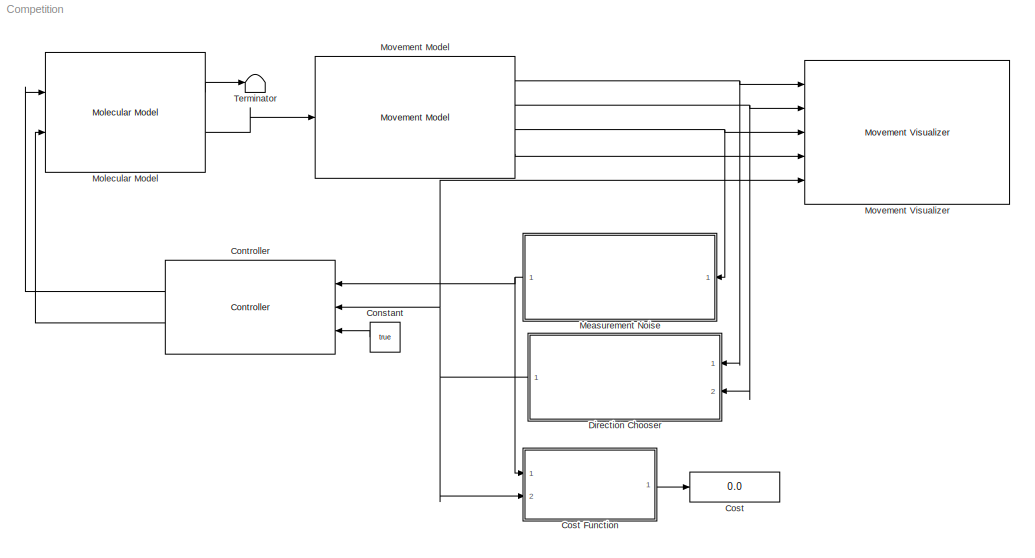
MODEL Competition
KIND model
BLOCK [Constant] Constant
  SID = 1
  Value = true
BLOCK [Reference] Controller  REF=LemmingToolbox/Controller
  Ports = [3, 2]
  SID = 2
  SourceBlock = LemmingToolbox/Controller
  controller = @controllerHysteresis
  sampleTimes = [0.3, 0]
BLOCK [Display] Cost
  Decimation = 1
  Ports = [1]
  SID = 3
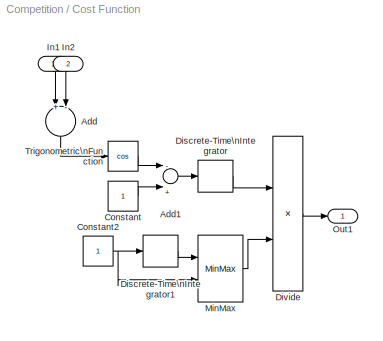
BLOCK [SubSystem] Cost Function
  Ports = [2, 1]
  RequestExecContextInheritance = off
  SID = 4
BLOCK [Sum] Cost Function/Add
  InputSameDT = off
  Inputs = +-
  OutDataTypeStr = Inherit: Inherit via internal rule
  Ports = [2, 1]
  SID = 7
  SaturateOnIntegerOverflow = off
BLOCK [Sum] Cost Function/Add1
  InputSameDT = off
  Inputs = -|+
  OutDataTypeStr = Inherit: Inherit via internal rule
  Ports = [2, 1]
  SID = 8
  SaturateOnIntegerOverflow = off
BLOCK [Constant] Cost Function/Constant
  SID = 9
BLOCK [Constant] Cost Function/Constant2
  SID = 10
  SampleTime = [0.3,0]
BLOCK [DiscreteIntegrator] Cost Function/Discrete-Time\nIntegrator
  ICPrevOutput = DiscIntNeverNeededParam
  ICPrevScaledInput = DiscIntNeverNeededParam
  Ports = [1, 1]
  SID = 11
  SampleTime = 0.3
BLOCK [DiscreteIntegrator] Cost Function/Discrete-Time\nIntegrator1
  ICPrevOutput = DiscIntNeverNeededParam
  ICPrevScaledInput = DiscIntNeverNeededParam
  Ports = [1, 1]
  SID = 12
  SampleTime = -1
BLOCK [Product] Cost Function/Divide
  InputSameDT = off
  Inputs = */
  OutDataTypeStr = Inherit: Inherit via internal rule
  Ports = [2, 1]
  RndMeth = Floor
  SID = 13
  SaturateOnIntegerOverflow = off
BLOCK [Inport] Cost Function/In1
  IconDisplay = Port number
  SID = 5
BLOCK [Inport] Cost Function/In2
  IconDisplay = Port number
  Port = 2
  SID = 6
BLOCK [MinMax] Cost Function/MinMax
  Function = max
  InputSameDT = off
  Inputs = 2
  Ports = [2, 1]
  SID = 14
  SaturateOnIntegerOverflow = off
BLOCK [Outport] Cost Function/Out1
  IconDisplay = Port number
  SID = 16
BLOCK [Trigonometry] Cost Function/Trigonometric\nFunction
  Operator = cos
  Ports = [1, 1]
  SID = 15
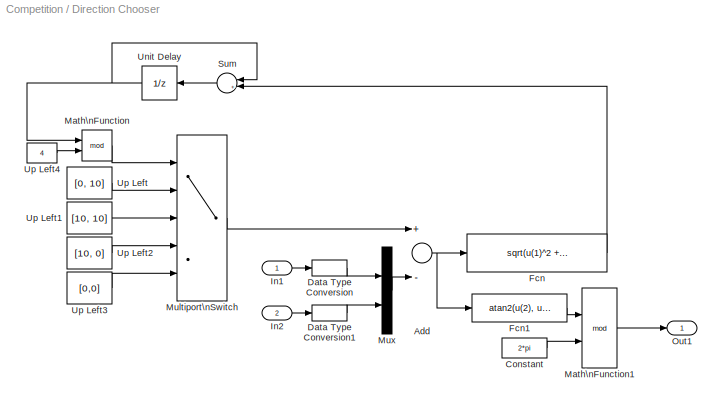
BLOCK [SubSystem] Direction Chooser
  Ports = [2, 1]
  RequestExecContextInheritance = off
  SID = 17
BLOCK [Sum] Direction Chooser/Add
  InputSameDT = off
  Inputs = +-
  OutDataTypeStr = Inherit: Inherit via internal rule
  Ports = [2, 1]
  SID = 20
  SaturateOnIntegerOverflow = off
BLOCK [Constant] Direction Chooser/Constant
  SID = 21
  Value = 2*pi
BLOCK [DataTypeConversion] Direction Chooser/Data Type Conversion
  OutDataTypeStr = double
  RndMeth = Floor
  SID = 22
  SampleTime = 0.3
  SaturateOnIntegerOverflow = off
BLOCK [DataTypeConversion] Direction Chooser/Data Type Conversion1
  OutDataTypeStr = double
  RndMeth = Floor
  SID = 23
  SampleTime = 0.3
  SaturateOnIntegerOverflow = off
BLOCK [Fcn] Direction Chooser/Fcn
  Expr = sqrt(u(1)^2 + u(2)^2) < 1
  SID = 24
BLOCK [Fcn] Direction Chooser/Fcn1
  Expr = atan2(u(2), u(1))
  SID = 25
BLOCK [Inport] Direction Chooser/In1
  IconDisplay = Port number
  SID = 18
BLOCK [Inport] Direction Chooser/In2
  IconDisplay = Port number
  Port = 2
  SID = 19
BLOCK [Math] Direction Chooser/Math\nFunction
  Operator = mod
  Ports = [2, 1]
  SID = 26
BLOCK [Math] Direction Chooser/Math\nFunction1
  Operator = mod
  Ports = [2, 1]
  SID = 27
BLOCK [MultiPortSwitch] Direction Chooser/Multiport\nSwitch
  DataPortOrder = Zero-based contiguous
  InputSameDT = off
  Inputs = 4
  Ports = [5, 1]
  SID = 28
  SaturateOnIntegerOverflow = off
  zeroidx = on
BLOCK [Mux] Direction Chooser/Mux
  DisplayOption = bar
  Inputs = 2
  Ports = [2, 1]
  SID = 29
BLOCK [Outport] Direction Chooser/Out1
  IconDisplay = Port number
  SID = 37
BLOCK [Sum] Direction Chooser/Sum
  IconShape = round
  InputSameDT = off
  Inputs = |++
  OutDataTypeStr = Inherit: Inherit via internal rule
  Ports = [2, 1]
  SID = 30
  SaturateOnIntegerOverflow = off
BLOCK [UnitDelay] Direction Chooser/Unit Delay
  SID = 31
  SampleTime = 0.3
BLOCK [Constant] Direction Chooser/Up Left
  SID = 32
  Value = [0, 10]
BLOCK [Constant] Direction Chooser/Up Left1
  SID = 33
  Value = [10, 10]
BLOCK [Constant] Direction Chooser/Up Left2
  SID = 34
  Value = [10, 0]
BLOCK [Constant] Direction Chooser/Up Left3
  SID = 35
  Value = [0,0]
BLOCK [Constant] Direction Chooser/Up Left4
  SID = 36
  Value = 4
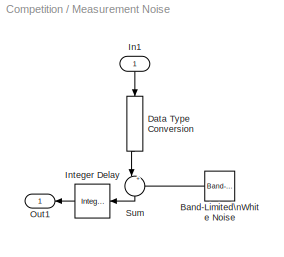
BLOCK [SubSystem] Measurement Noise
  Ports = [1, 1]
  RequestExecContextInheritance = off
  SID = 38
BLOCK [Reference] Measurement Noise/Band-Limited\nWhite Noise  REF=simulink/Sources/Band-Limited\nWhite Noise
  Cov = [0.004]
  FunctionWithSeparateData = off
  Ports = [0, 1]
  RTWMemSecDataConstants = Inherit from model
  RTWMemSecDataInternal = Inherit from model
  RTWMemSecDataParameters = Inherit from model
  RTWMemSecFuncExecute = Inherit from model
  RTWMemSecFuncInitTerm = Inherit from model
  SID = 40
  ShowPortLabels = FromPortIcon
  SourceBlock = simulink/Sources/Band-Limited\nWhite Noise
  SourceProductBaseCode = SL
  SourceProductName = Simulink
  SourceType = Band-Limited White Noise.
  SystemSampleTime = -1
  Ts = 0.3
  VectorParams1D = on
  seed = [23341]
BLOCK [DataTypeConversion] Measurement Noise/Data Type Conversion
  OutDataTypeStr = double
  RndMeth = Floor
  SID = 41
  SampleTime = 0.3
  SaturateOnIntegerOverflow = off
BLOCK [Inport] Measurement Noise/In1
  IconDisplay = Port number
  SID = 39
BLOCK [Reference] Measurement Noise/Integer Delay  REF=simulink/Discrete/Integer Delay
  NumDelays = 3
  Ports = [1, 1]
  SID = 42
  SourceBlock = simulink/Discrete/Integer Delay
  SourceProductBaseCode = SL
  SourceProductName = Simulink
  SourceType = Integer Delay
  samptime = -1
  vinit = 0.0
BLOCK [Outport] Measurement Noise/Out1
  IconDisplay = Port number
  SID = 44
BLOCK [Sum] Measurement Noise/Sum
  IconShape = round
  InputSameDT = off
  Inputs = |++
  OutDataTypeStr = Inherit: Inherit via internal rule
  Ports = [2, 1]
  SID = 43
  SaturateOnIntegerOverflow = off
BLOCK [Reference] Molecular Model  REF=LemmingToolbox/Molecular Model
  Anker = 80
  AnkerProt = 57
  CheX = 42
  Ports = [2, 2]
  SID = 45
  SourceBlock = LemmingToolbox/Molecular Model
  asp = 1e-3
  cheSpeciesAttachedTo = CheX-PIF3 & PhyB-Anker
  controlledCheSpecies = CheY
  molecModel = Spiro
  useOrgParameters = off
BLOCK [Reference] Movement Model  REF=LemmingToolbox/Movement Model
  Ports = [1, 4]
  SID = 46
  SourceBlock = LemmingToolbox/Movement Model
  binning = 2
  imageDim = [1344,1024]
  initialCondition = [0, 0, 0]
  pixelSize = 6.45 / 40
  sampleTimes = [0.03, 0]
BLOCK [Reference] Movement Visualizer  REF=LemmingToolbox/Movement Visualizer
  Ports = [5]
  SID = 47
  SourceBlock = LemmingToolbox/Movement Visualizer
  numPoints = 1000
  sampleTimes = [0.3, 0.1]
BLOCK [Terminator] Terminator
  SID = 48
LINE Constant:1 -> Controller:3
LINE Controller:1 -> Molecular Model:1
LINE Controller:2 -> Molecular Model:2
LINE Cost Function/Add1:1 -> Cost Function/Discrete-Time\nIntegrator:1
LINE Cost Function/Add:1 -> Cost Function/Trigonometric\nFunction:1
NET Cost Function/Constant2:1 -> Cost Function/Discrete-Time\nIntegrator1:1, Cost Function/MinMax:2
LINE Cost Function/Constant:1 -> Cost Function/Add1:2
LINE Cost Function/Discrete-Time\nIntegrator1:1 -> Cost Function/MinMax:1
LINE Cost Function/Discrete-Time\nIntegrator:1 -> Cost Function/Divide:1
LINE Cost Function/Divide:1 -> Cost Function/Out1:1
LINE Cost Function/In1:1 -> Cost Function/Add:1
LINE Cost Function/In2:1 -> Cost Function/Add:2
LINE Cost Function/MinMax:1 -> Cost Function/Divide:2
LINE Cost Function/Trigonometric\nFunction:1 -> Cost Function/Add1:1
LINE Cost Function:1 -> Cost:1
NET Direction Chooser/Add:1 -> Direction Chooser/Fcn1:1, Direction Chooser/Fcn:1
LINE Direction Chooser/Constant:1 -> Direction Chooser/Math\nFunction1:2
LINE Direction Chooser/Data Type Conversion1:1 -> Direction Chooser/Mux:2
LINE Direction Chooser/Data Type Conversion:1 -> Direction Chooser/Mux:1
LINE Direction Chooser/Fcn1:1 -> Direction Chooser/Math\nFunction1:1
LINE Direction Chooser/Fcn:1 -> Direction Chooser/Sum:2
LINE Direction Chooser/In1:1 -> Direction Chooser/Data Type Conversion:1
LINE Direction Chooser/In2:1 -> Direction Chooser/Data Type Conversion1:1
LINE Direction Chooser/Math\nFunction1:1 -> Direction Chooser/Out1:1
LINE Direction Chooser/Math\nFunction:1 -> Direction Chooser/Multiport\nSwitch:1
LINE Direction Chooser/Multiport\nSwitch:1 -> Direction Chooser/Add:1
LINE Direction Chooser/Mux:1 -> Direction Chooser/Add:2
LINE Direction Chooser/Sum:1 -> Direction Chooser/Unit Delay:1
NET Direction Chooser/Unit Delay:1 -> Direction Chooser/Math\nFunction:1, Direction Chooser/Sum:1
LINE Direction Chooser/Up Left1:1 -> Direction Chooser/Multiport\nSwitch:3
LINE Direction Chooser/Up Left2:1 -> Direction Chooser/Multiport\nSwitch:4
LINE Direction Chooser/Up Left3:1 -> Direction Chooser/Multiport\nSwitch:5
LINE Direction Chooser/Up Left4:1 -> Direction Chooser/Math\nFunction:2
LINE Direction Chooser/Up Left:1 -> Direction Chooser/Multiport\nSwitch:2
NET Direction Chooser:1 -> Controller:2, Cost Function:2, Movement Visualizer:5
LINE Measurement Noise/Band-Limited\nWhite Noise:1 -> Measurement Noise/Sum:2
LINE Measurement Noise/Data Type Conversion:1 -> Measurement Noise/Sum:1
LINE Measurement Noise/In1:1 -> Measurement Noise/Data Type Conversion:1
LINE Measurement Noise/Integer Delay:1 -> Measurement Noise/Out1:1
LINE Measurement Noise/Sum:1 -> Measurement Noise/Integer Delay:1
NET Measurement Noise:1 -> Controller:1, Cost Function:1
LINE Molecular Model:1 -> Terminator:1
LINE Molecular Model:2 -> Movement Model:1
NET Movement Model:1 -> Direction Chooser:1, Movement Visualizer:1
NET Movement Model:2 -> Direction Chooser:2, Movement Visualizer:2
NET Movement Model:3 -> Measurement Noise:1, Movement Visualizer:3
LINE Movement Model:4 -> Movement Visualizer:4
note: NET lines group one-source signal fan-out (src -> all destinations, sorted); 1:1 wires keep LINE
